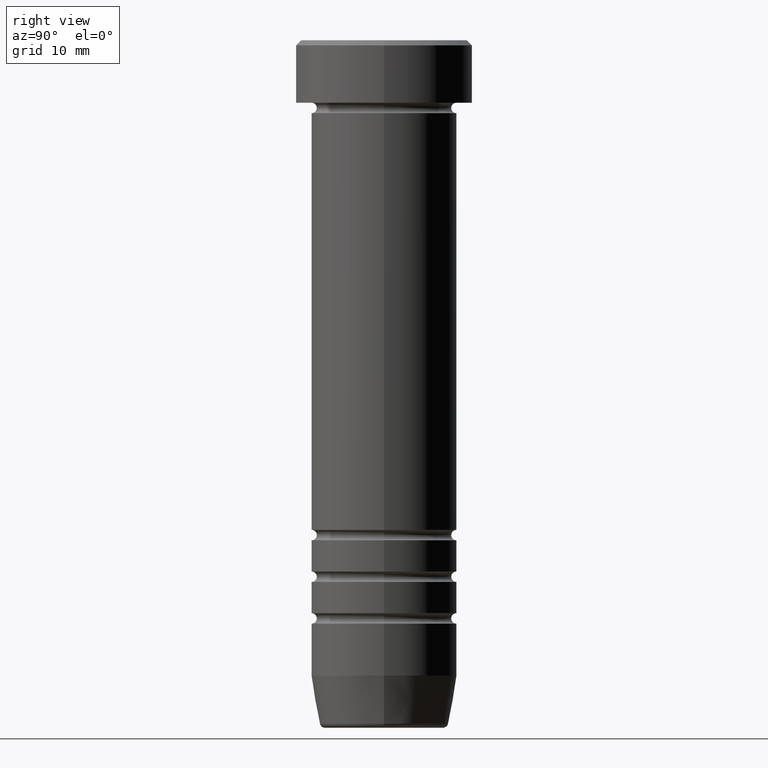
[diagram: clean part render]
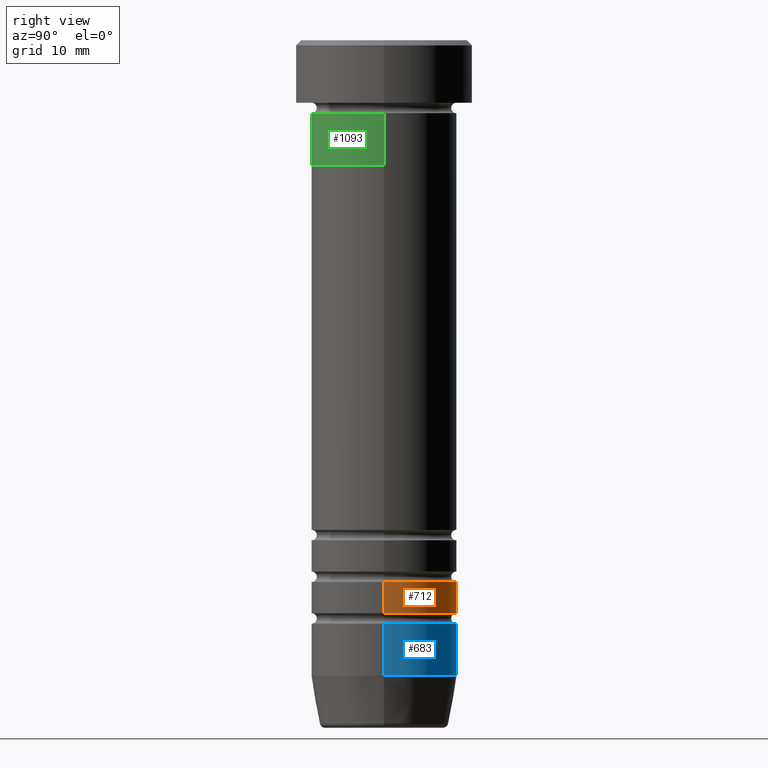
[diagram: same view with three faces highlighted in distinct colors, each labeled with its STEP entity id]
A machine part, right view with three faces highlighted in distinct colors.
Their STEP definitions:

[orange] entity #712 — the highlighted cylindrical surface (partial cylindrical patch) has radius 7 mm, axis along (-0, -0, 1).
#8 = CIRCLE ( 'NONE', #537, 6.999999999999997335 ) ;
#108 = CARTESIAN_POINT ( 'NONE',  ( -6.999999999999997335, 8.572527594031469245E-16, -52.00000000000001421 ) ) ;
#154 = VECTOR ( 'NONE', #844, 1000.000000000000000 ) ;
#169 = DIRECTION ( 'NONE',  ( -0.000000000000000000, -0.000000000000000000, 1.000000000000000000 ) ) ;
#224 = CARTESIAN_POINT ( 'NONE',  ( 0.000000000000000000, 0.000000000000000000, -55.00000000000000711 ) ) ;
#248 = EDGE_CURVE ( 'NONE', #1128, #533, #476, .T. ) ;
#250 = CARTESIAN_POINT ( 'NONE',  ( 0.000000000000000000, 0.000000000000000000, -52.00000000000001421 ) ) ;
#254 = CARTESIAN_POINT ( 'NONE',  ( 6.999999999999993783, 0.000000000000000000, 0.000000000000000000 ) ) ;
#312 = EDGE_LOOP ( 'NONE', ( #731, #654, #745, #802 ) ) ;
#369 = DIRECTION ( 'NONE',  ( -0.000000000000000000, -0.000000000000000000, 1.000000000000000000 ) ) ;
#397 = DIRECTION ( 'NONE',  ( -0.000000000000000000, -0.000000000000000000, 1.000000000000000000 ) ) ;
#457 = AXIS2_PLACEMENT_3D ( 'NONE', #224, #660, #486 ) ;
#476 = LINE ( 'NONE', #1098, #154 ) ;
#486 = DIRECTION ( 'NONE',  ( 1.000000000000000000, 0.000000000000000000, 0.000000000000000000 ) ) ;
#533 = VERTEX_POINT ( 'NONE', #108 ) ;
#537 = AXIS2_PLACEMENT_3D ( 'NONE', #250, #169, #956 ) ;
#554 = CIRCLE ( 'NONE', #457, 6.999999999999990230 ) ;
#557 = CARTESIAN_POINT ( 'NONE',  ( 6.999999999999997335, 0.000000000000000000, -52.00000000000001421 ) ) ;
#580 = CARTESIAN_POINT ( 'NONE',  ( -6.999999999999990230, 8.572527594031463329E-16, -55.00000000000000711 ) ) ;
#625 = EDGE_CURVE ( 'NONE', #1124, #1109, #634, .T. ) ;
#634 = LINE ( 'NONE', #254, #1011 ) ;
#654 = ORIENTED_EDGE ( 'NONE', *, *, #248, .T. ) ;
#660 = DIRECTION ( 'NONE',  ( -0.000000000000000000, -0.000000000000000000, 1.000000000000000000 ) ) ;
#668 = CARTESIAN_POINT ( 'NONE',  ( 6.999999999999990230, 0.000000000000000000, -55.00000000000000711 ) ) ;
#712 = ADVANCED_FACE ( 'NONE', ( #746 ), #843, .T. ) ;
#731 = ORIENTED_EDGE ( 'NONE', *, *, #732, .T. ) ;
#732 = EDGE_CURVE ( 'NONE', #1124, #1128, #554, .T. ) ;
#745 = ORIENTED_EDGE ( 'NONE', *, *, #879, .F. ) ;
#746 = FACE_OUTER_BOUND ( 'NONE', #312, .T. ) ;
#751 = CARTESIAN_POINT ( 'NONE',  ( 0.000000000000000000, 0.000000000000000000, 0.000000000000000000 ) ) ;
#802 = ORIENTED_EDGE ( 'NONE', *, *, #625, .F. ) ;
#843 = CYLINDRICAL_SURFACE ( 'NONE', #1065, 6.999999999999993783 ) ;
#844 = DIRECTION ( 'NONE',  ( -0.000000000000000000, -0.000000000000000000, 1.000000000000000000 ) ) ;
#879 = EDGE_CURVE ( 'NONE', #1109, #533, #8, .T. ) ;
#956 = DIRECTION ( 'NONE',  ( 1.000000000000000000, 0.000000000000000000, 0.000000000000000000 ) ) ;
#1011 = VECTOR ( 'NONE', #369, 1000.000000000000000 ) ;
#1065 = AXIS2_PLACEMENT_3D ( 'NONE', #751, #397, #1107 ) ;
#1098 = CARTESIAN_POINT ( 'NONE',  ( -6.999999999999993783, 8.572527594031465301E-16, 0.000000000000000000 ) ) ;
#1107 = DIRECTION ( 'NONE',  ( 1.000000000000000000, 0.000000000000000000, 0.000000000000000000 ) ) ;
#1109 = VERTEX_POINT ( 'NONE', #557 ) ;
#1124 = VERTEX_POINT ( 'NONE', #668 ) ;
#1128 = VERTEX_POINT ( 'NONE', #580 ) ;

[blue] entity #683 — the highlighted cylindrical surface (partial cylindrical patch) has radius 7 mm, axis along (-0, -0, 1).
#26 = CIRCLE ( 'NONE', #329, 6.999999999999997335 ) ;
#48 = ORIENTED_EDGE ( 'NONE', *, *, #908, .F. ) ;
#49 = DIRECTION ( 'NONE',  ( 1.000000000000000000, 0.000000000000000000, 0.000000000000000000 ) ) ;
#60 = EDGE_CURVE ( 'NONE', #864, #162, #160, .T. ) ;
#86 = AXIS2_PLACEMENT_3D ( 'NONE', #784, #147, #1118 ) ;
#117 = ORIENTED_EDGE ( 'NONE', *, *, #60, .T. ) ;
#147 = DIRECTION ( 'NONE',  ( -0.000000000000000000, -0.000000000000000000, 1.000000000000000000 ) ) ;
#160 = LINE ( 'NONE', #618, #440 ) ;
#162 = VERTEX_POINT ( 'NONE', #352 ) ;
#178 = DIRECTION ( 'NONE',  ( -0.000000000000000000, -0.000000000000000000, 1.000000000000000000 ) ) ;
#194 = CIRCLE ( 'NONE', #86, 6.999999999999997335 ) ;
#202 = EDGE_CURVE ( 'NONE', #249, #694, #987, .T. ) ;
#208 = VECTOR ( 'NONE', #983, 1000.000000000000000 ) ;
#249 = VERTEX_POINT ( 'NONE', #658 ) ;
#329 = AXIS2_PLACEMENT_3D ( 'NONE', #859, #870, #49 ) ;
#352 = CARTESIAN_POINT ( 'NONE',  ( -6.999999999999997335, 8.572527594031470232E-16, -56.00000000000000711 ) ) ;
#440 = VECTOR ( 'NONE', #178, 1000.000000000000000 ) ;
#473 = FACE_OUTER_BOUND ( 'NONE', #1066, .T. ) ;
#577 = DIRECTION ( 'NONE',  ( 1.000000000000000000, 0.000000000000000000, 0.000000000000000000 ) ) ;
#609 = ORIENTED_EDGE ( 'NONE', *, *, #202, .F. ) ;
#618 = CARTESIAN_POINT ( 'NONE',  ( -6.999999999999997335, 8.572527594031470232E-16, 0.000000000000000000 ) ) ;
#658 = CARTESIAN_POINT ( 'NONE',  ( 6.999999999999997335, 0.000000000000000000, -61.00000000000000711 ) ) ;
#683 = ADVANCED_FACE ( 'NONE', ( #473 ), #852, .T. ) ;
#694 = VERTEX_POINT ( 'NONE', #921 ) ;
#753 = CARTESIAN_POINT ( 'NONE',  ( 6.999999999999997335, 0.000000000000000000, 0.000000000000000000 ) ) ;
#764 = CARTESIAN_POINT ( 'NONE',  ( 0.000000000000000000, 0.000000000000000000, 0.000000000000000000 ) ) ;
#784 = CARTESIAN_POINT ( 'NONE',  ( 0.000000000000000000, 0.000000000000000000, -61.00000000000000711 ) ) ;
#837 = AXIS2_PLACEMENT_3D ( 'NONE', #764, #1004, #577 ) ;
#841 = ORIENTED_EDGE ( 'NONE', *, *, #868, .T. ) ;
#852 = CYLINDRICAL_SURFACE ( 'NONE', #837, 6.999999999999997335 ) ;
#859 = CARTESIAN_POINT ( 'NONE',  ( 0.000000000000000000, 0.000000000000000000, -56.00000000000000711 ) ) ;
#864 = VERTEX_POINT ( 'NONE', #950 ) ;
#868 = EDGE_CURVE ( 'NONE', #249, #864, #194, .T. ) ;
#870 = DIRECTION ( 'NONE',  ( -0.000000000000000000, -0.000000000000000000, 1.000000000000000000 ) ) ;
#908 = EDGE_CURVE ( 'NONE', #694, #162, #26, .T. ) ;
#921 = CARTESIAN_POINT ( 'NONE',  ( 6.999999999999997335, 0.000000000000000000, -56.00000000000000711 ) ) ;
#950 = CARTESIAN_POINT ( 'NONE',  ( -6.999999999999997335, 8.572527594031470232E-16, -61.00000000000000711 ) ) ;
#983 = DIRECTION ( 'NONE',  ( -0.000000000000000000, -0.000000000000000000, 1.000000000000000000 ) ) ;
#987 = LINE ( 'NONE', #753, #208 ) ;
#1004 = DIRECTION ( 'NONE',  ( -0.000000000000000000, -0.000000000000000000, 1.000000000000000000 ) ) ;
#1066 = EDGE_LOOP ( 'NONE', ( #841, #117, #48, #609 ) ) ;
#1118 = DIRECTION ( 'NONE',  ( 1.000000000000000000, 0.000000000000000000, 0.000000000000000000 ) ) ;

[green] entity #1093 — the highlighted cylindrical surface (partial cylindrical patch) has radius 7 mm, axis along (-0, -0, 1).
#23 = CARTESIAN_POINT ( 'NONE',  ( 0.000000000000000000, 0.000000000000000000, 0.000000000000000000 ) ) ;
#28 = AXIS2_PLACEMENT_3D ( 'NONE', #447, #450, #815 ) ;
#41 = VECTOR ( 'NONE', #969, 1000.000000000000000 ) ;
#46 = EDGE_CURVE ( 'NONE', #133, #613, #1132, .T. ) ;
#110 = EDGE_CURVE ( 'NONE', #1007, #585, #526, .T. ) ;
#124 = DIRECTION ( 'NONE',  ( -0.000000000000000000, -0.000000000000000000, 1.000000000000000000 ) ) ;
#133 = VERTEX_POINT ( 'NONE', #972 ) ;
#136 = CIRCLE ( 'NONE', #1033, 7.000000000000000000 ) ;
#151 = ORIENTED_EDGE ( 'NONE', *, *, #799, .F. ) ;
#196 = DIRECTION ( 'NONE',  ( 1.000000000000000000, 0.000000000000000000, 0.000000000000000000 ) ) ;
#259 = CARTESIAN_POINT ( 'NONE',  ( -6.999999999999999112, 8.572527594031472204E-16, 0.000000000000000000 ) ) ;
#291 = CIRCLE ( 'NONE', #28, 6.999999999999999112 ) ;
#323 = VECTOR ( 'NONE', #886, 1000.000000000000000 ) ;
#336 = DIRECTION ( 'NONE',  ( -0.000000000000000000, -0.000000000000000000, 1.000000000000000000 ) ) ;
#341 = DIRECTION ( 'NONE',  ( 1.000000000000000000, 0.000000000000000000, 0.000000000000000000 ) ) ;
#355 = CARTESIAN_POINT ( 'NONE',  ( 6.999999999999999112, 0.000000000000000000, 0.000000000000000000 ) ) ;
#447 = CARTESIAN_POINT ( 'NONE',  ( 0.000000000000000000, 0.000000000000000000, -12.00000000000000000 ) ) ;
#450 = DIRECTION ( 'NONE',  ( -0.000000000000000000, -0.000000000000000000, 1.000000000000000000 ) ) ;
#461 = CARTESIAN_POINT ( 'NONE',  ( 6.999999999999999112, 0.000000000000000000, -12.00000000000000000 ) ) ;
#526 = LINE ( 'NONE', #355, #41 ) ;
#585 = VERTEX_POINT ( 'NONE', #639 ) ;
#606 = ORIENTED_EDGE ( 'NONE', *, *, #46, .F. ) ;
#608 = CARTESIAN_POINT ( 'NONE',  ( -7.000000000000000888, 8.572527594031474176E-16, -7.000000000000000888 ) ) ;
#613 = VERTEX_POINT ( 'NONE', #608 ) ;
#623 = ORIENTED_EDGE ( 'NONE', *, *, #1045, .T. ) ;
#639 = CARTESIAN_POINT ( 'NONE',  ( 7.000000000000000000, 0.000000000000000000, -7.000000000000000888 ) ) ;
#674 = CYLINDRICAL_SURFACE ( 'NONE', #819, 6.999999999999999112 ) ;
#799 = EDGE_CURVE ( 'NONE', #613, #585, #136, .T. ) ;
#815 = DIRECTION ( 'NONE',  ( 1.000000000000000000, 0.000000000000000000, 0.000000000000000000 ) ) ;
#819 = AXIS2_PLACEMENT_3D ( 'NONE', #23, #124, #196 ) ;
#865 = CARTESIAN_POINT ( 'NONE',  ( 0.000000000000000000, 0.000000000000000000, -7.000000000000000888 ) ) ;
#886 = DIRECTION ( 'NONE',  ( -0.000000000000000000, -0.000000000000000000, 1.000000000000000000 ) ) ;
#969 = DIRECTION ( 'NONE',  ( -0.000000000000000000, -0.000000000000000000, 1.000000000000000000 ) ) ;
#972 = CARTESIAN_POINT ( 'NONE',  ( -6.999999999999999112, 8.572527594031472204E-16, -12.00000000000000000 ) ) ;
#974 = EDGE_LOOP ( 'NONE', ( #606, #623, #1077, #151 ) ) ;
#1007 = VERTEX_POINT ( 'NONE', #461 ) ;
#1033 = AXIS2_PLACEMENT_3D ( 'NONE', #865, #336, #341 ) ;
#1045 = EDGE_CURVE ( 'NONE', #133, #1007, #291, .T. ) ;
#1077 = ORIENTED_EDGE ( 'NONE', *, *, #110, .T. ) ;
#1093 = ADVANCED_FACE ( 'NONE', ( #1106 ), #674, .T. ) ;
#1106 = FACE_OUTER_BOUND ( 'NONE', #974, .T. ) ;
#1132 = LINE ( 'NONE', #259, #323 ) ;